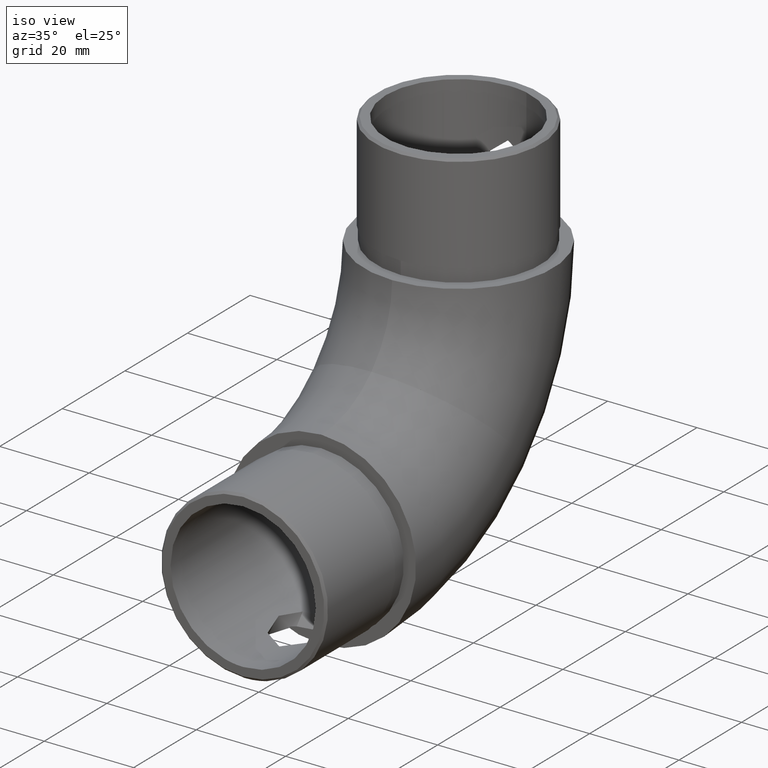
[diagram: clean part render]
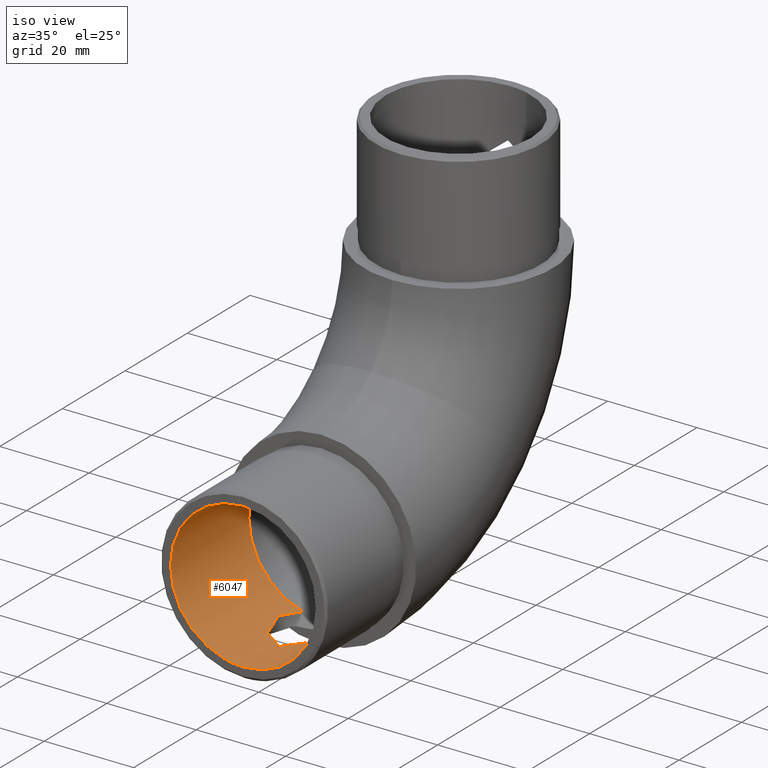
[diagram: same view with one face highlighted and labeled with its STEP entity id]
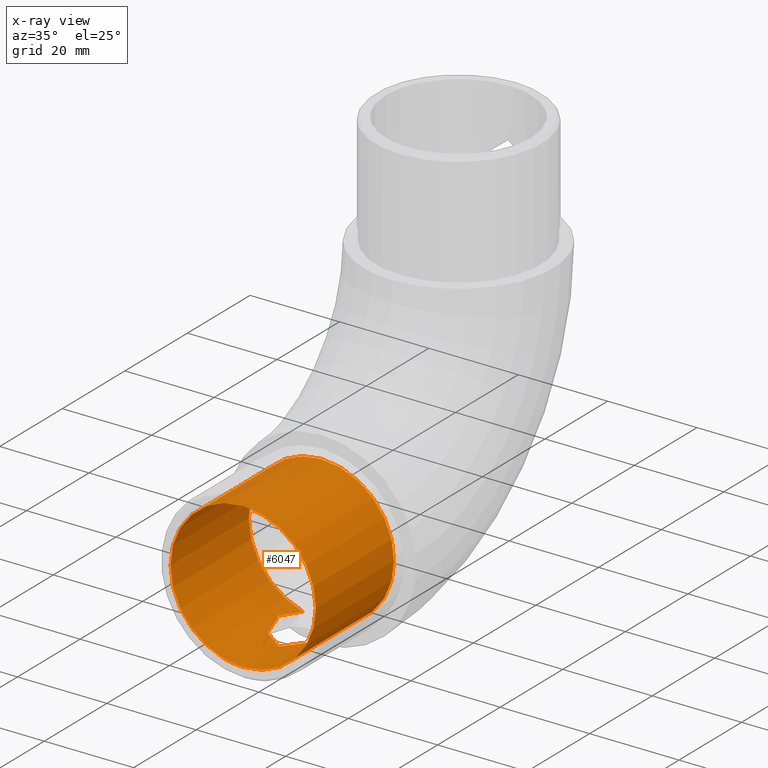
[diagram: x-ray of the same camera — body ghosted, the highlighted face saturated]
A machine part, iso view. The second image highlights one B-rep face of the part: STEP entity #6047.
The next image is the same camera in x-ray: the body ghosted, the highlighted face saturated — about 0% of this face is hidden behind the body in this view.
In plain terms, the highlighted cylindrical surface (bore or boss wall) has radius 16.25 mm, axis along (0, 1, 0).
Its self-contained STEP definition (entity closure, byte-faithful):
#190 = CARTESIAN_POINT ( 'NONE',  ( 3.448929757055123200, -12.18129015751596000, -15.88149117037157900 ) ) ;
#218 = DIRECTION ( 'NONE',  ( 0.0000000000000000000, 0.0000000000000000000, -1.000000000000000000 ) ) ;
#274 = EDGE_LOOP ( 'NONE', ( #1229 ) ) ;
#297 = CARTESIAN_POINT ( 'NONE',  ( 2.377435753720931200, -13.13052404046563600, -16.07819100454541300 ) ) ;
#359 = CARTESIAN_POINT ( 'NONE',  ( 5.214704771417741500, -1.453918003424510100, -15.39130149737128800 ) ) ;
#421 = CARTESIAN_POINT ( 'NONE',  ( -2.366528915036658200, -13.13820106847607100, -16.07984521875824100 ) ) ;
#423 = VERTEX_POINT ( 'NONE', #10423 ) ;
#1229 = ORIENTED_EDGE ( 'NONE', *, *, #6137, .T. ) ;
#1390 = ORIENTED_EDGE ( 'NONE', *, *, #5328, .F. ) ;
#1597 = CARTESIAN_POINT ( 'NONE',  ( 5.616004245823371700, -2.445469155722966200, -15.24902749760857600 ) ) ;
#1704 = CIRCLE ( 'NONE', #4555, 16.25000000000000000 ) ;
#1712 = CARTESIAN_POINT ( 'NONE',  ( -5.901850564895326600, -6.714128322935523300, -15.14050343125642700 ) ) ;
#1769 = CARTESIAN_POINT ( 'NONE',  ( -3.440020681453576300, -12.19113531170064700, -15.88343845367280400 ) ) ;
#1827 = CARTESIAN_POINT ( 'NONE',  ( -4.501465255794799200, -10.76512515277950000, -15.61763398572416200 ) ) ;
#2162 = B_SPLINE_CURVE_WITH_KNOTS ( 'NONE', 3,
 ( #4532, #8776, #7439, #8596, #5815, #10062, #14254, #1712, #3072, #16936, #14315, #1827, #10005, #1769, #11527, #11468, #421, #3183, #12807, #17169, #7315, #10180, #16993, #3249, #15721, #7376, #5935, #9945, #14197, #4473, #297, #7260, #17107, #190, #3008, #11589, #17049, #5875, #15608, #4652, #8715, #3128, #14379, #8656, #6044, #12748, #1597, #12863, #359, #10121, #15549, #4417, #14144 ),
 .UNSPECIFIED., .F., .F.,
 ( 4, 2, 2, 2, 2, 2, 2, 2, 2, 2, 2, 1, 2, 2, 2, 2, 2, 2, 2, 2, 2, 2, 2, 2, 2, 2, 4 ),
 ( 4.564145720659034900E-018, 0.002152881458970970300, 0.004305762917941936300, 0.006458644376912903200, 0.008611525835883870900, 0.01076440729485483700, 0.01291728875382580300, 0.01399372948331128500, 0.01507017021279676500, 0.01614661094228224400, 0.01668483130702498600, 0.01722305167176772400, 0.01776127203651046600, 0.01829949240125320800, 0.01883771276599594700, 0.01937593313073868900, 0.02045237386022417300, 0.02152881458970965300, 0.02368169604868062100, 0.02583457750765158500, 0.02691101823713707200, 0.02798745896662255300, 0.03014034042559351700, 0.03121678115507899700, 0.03229322188456448100, 0.03336966261404996500, 0.03444610334353544900 ),
 .UNSPECIFIED. ) ;
#3008 = CARTESIAN_POINT ( 'NONE',  ( 4.130368566778536800, -11.35889685862943700, -15.72323340020526500 ) ) ;
#3072 = CARTESIAN_POINT ( 'NONE',  ( -5.770927192521025300, -7.430969886999123200, -15.19211005504580700 ) ) ;
#3128 = CARTESIAN_POINT ( 'NONE',  ( 5.931667557647212900, -6.359437929989878700, -15.12874341256862800 ) ) ;
#3183 = CARTESIAN_POINT ( 'NONE',  ( -1.741088755240078400, -13.50250852065948200, -16.15953252143462400 ) ) ;
#3249 = CARTESIAN_POINT ( 'NONE',  ( 0.3653330770537224200, -13.88926549083745100, -16.24688917668635900 ) ) ;
#3908 = DIRECTION ( 'NONE',  ( -0.0000000000000000000, 1.000000000000000000, -0.0000000000000000000 ) ) ;
#4417 = CARTESIAN_POINT ( 'NONE',  ( 4.434435627201729300, -0.2592841030882712700, -15.63533923865645300 ) ) ;
#4473 = CARTESIAN_POINT ( 'NONE',  ( 1.911850074368902200, -13.40366372598989700, -16.13789983171802000 ) ) ;
#4532 = CARTESIAN_POINT ( 'NONE',  ( -4.187048588256864400, -6.938893903907228400E-015, -15.70130963071477300 ) ) ;
#4555 = AXIS2_PLACEMENT_3D ( 'NONE', #10697, #13426, #6551 ) ;
#4652 = CARTESIAN_POINT ( 'NONE',  ( 5.755520534025970700, -7.426074504634036600, -15.19674883643539200 ) ) ;
#5328 = EDGE_CURVE ( 'NONE', #17788, #10366, #2162, .T. ) ;
#5785 = CARTESIAN_POINT ( 'NONE',  ( 0.0000000000000000000, -24.99999999999999600, 0.0000000000000000000 ) ) ;
#5815 = CARTESIAN_POINT ( 'NONE',  ( -5.822768562522901100, -3.127965566790913000, -15.17130336419820200 ) ) ;
#5875 = CARTESIAN_POINT ( 'NONE',  ( 5.391218936003561200, -8.802448154099888500, -15.33095134721446100 ) ) ;
#5935 = CARTESIAN_POINT ( 'NONE',  ( 1.249871235287719300, -13.69486251176971000, -16.20279097754427500 ) ) ;
#6044 = CARTESIAN_POINT ( 'NONE',  ( 5.871633529041825600, -3.493969276475735100, -15.15219499539471200 ) ) ;
#6047 = ADVANCED_FACE ( 'NONE', ( #13745, #8714 ), #10687, .F. ) ;
#6137 = EDGE_CURVE ( 'NONE', #423, #423, #6983, .T. ) ;
#6551 = DIRECTION ( 'NONE',  ( 0.0000000000000000000, 0.0000000000000000000, 1.000000000000000000 ) ) ;
#6817 = CARTESIAN_POINT ( 'NONE',  ( 0.0000000000000000000, -3.000000000000000000, 0.0000000000000000000 ) ) ;
#6983 = CIRCLE ( 'NONE', #14683, 16.25000000000000000 ) ;
#7260 = CARTESIAN_POINT ( 'NONE',  ( 2.663778231678697300, -12.91755567695375400, -16.03249581831694900 ) ) ;
#7315 = CARTESIAN_POINT ( 'NONE',  ( -0.7119720233447838200, -13.83880942920801300, -16.23538784699166000 ) ) ;
#7376 = CARTESIAN_POINT ( 'NONE',  ( 0.9035687213338955400, -13.79662219941734600, -16.22578741179042800 ) ) ;
#7439 = CARTESIAN_POINT ( 'NONE',  ( -5.065051119975343900, -1.112690499507348600, -15.44348821516686200 ) ) ;
#8157 = CARTESIAN_POINT ( 'NONE',  ( 4.187048588256864400, -6.938893903907228400E-015, -15.70130963071477300 ) ) ;
#8500 = EDGE_CURVE ( 'NONE', #17788, #10366, #1704, .T. ) ;
#8596 = CARTESIAN_POINT ( 'NONE',  ( -5.642680738015588600, -2.434049871107422500, -15.24192327722421000 ) ) ;
#8656 = CARTESIAN_POINT ( 'NONE',  ( 6.013916428112991300, -4.566588044173613500, -15.09654540307163200 ) ) ;
#8714 = FACE_OUTER_BOUND ( 'NONE', #16721, .T. ) ;
#8715 = CARTESIAN_POINT ( 'NONE',  ( 5.883428082893937400, -6.719700098450669400, -15.14768846420832900 ) ) ;
#8776 = CARTESIAN_POINT ( 'NONE',  ( -4.682123676234230200, -0.5188836921087409700, -15.56928857661480600 ) ) ;
#9945 = CARTESIAN_POINT ( 'NONE',  ( 1.418945199771153700, -13.63260061009931200, -16.18878306751718200 ) ) ;
#10005 = CARTESIAN_POINT ( 'NONE',  ( -4.124546568208938200, -11.36769042504683800, -15.72482283551825200 ) ) ;
#10062 = CARTESIAN_POINT ( 'NONE',  ( -6.014352190748325300, -4.567514071994424700, -15.09637861299449600 ) ) ;
#10121 = CARTESIAN_POINT ( 'NONE',  ( 5.044141155082101600, -1.134655730043201600, -15.44865179011602100 ) ) ;
#10180 = CARTESIAN_POINT ( 'NONE',  ( -0.3531512056770113600, -13.89042295333057100, -16.24715381013545100 ) ) ;
#10366 = VERTEX_POINT ( 'NONE', #8157 ) ;
#10423 = CARTESIAN_POINT ( 'NONE',  ( 0.0000000000000000000, -24.99999999999999600, -16.25000000000000000 ) ) ;
#10687 = CYLINDRICAL_SURFACE ( 'NONE', #13758, 16.25000000000000000 ) ;
#10697 = CARTESIAN_POINT ( 'NONE',  ( 0.0000000000000000000, -6.938893903907228400E-015, -6.938893903907228400E-015 ) ) ;
#11215 = DIRECTION ( 'NONE',  ( 0.0000000000000000000, -1.000000000000000000, 0.0000000000000000000 ) ) ;
#11468 = CARTESIAN_POINT ( 'NONE',  ( -2.653817313358045800, -12.92536190324837300, -16.03415180193273300 ) ) ;
#11527 = CARTESIAN_POINT ( 'NONE',  ( -3.189985483764189700, -12.45287586937434000, -15.93614642733541200 ) ) ;
#11589 = CARTESIAN_POINT ( 'NONE',  ( 4.506447827024825200, -10.75657757830240700, -15.61618511901637700 ) ) ;
#12287 = CARTESIAN_POINT ( 'NONE',  ( -4.187048588256864400, -6.938893903907228400E-015, -15.70130963071477300 ) ) ;
#12748 = CARTESIAN_POINT ( 'NONE',  ( 5.801782800921079900, -3.136885916125119200, -15.17931683715920800 ) ) ;
#12807 = CARTESIAN_POINT ( 'NONE',  ( -1.410968120432078800, -13.64869066531894100, -16.19235081667131500 ) ) ;
#12863 = CARTESIAN_POINT ( 'NONE',  ( 5.499862372104931100, -2.108485434504064200, -15.29172395526203900 ) ) ;
#13426 = DIRECTION ( 'NONE',  ( 0.0000000000000000000, 1.000000000000000000, 0.0000000000000000000 ) ) ;
#13641 = DIRECTION ( 'NONE',  ( 0.0000000000000000000, 0.0000000000000000000, 1.000000000000000000 ) ) ;
#13745 = FACE_OUTER_BOUND ( 'NONE', #274, .T. ) ;
#13758 = AXIS2_PLACEMENT_3D ( 'NONE', #6817, #3908, #13641 ) ;
#14144 = CARTESIAN_POINT ( 'NONE',  ( 4.187048588256864400, -6.938893903907228400E-015, -15.70130963071477300 ) ) ;
#14197 = CARTESIAN_POINT ( 'NONE',  ( 1.749643344787952900, -13.48723407238918500, -16.15638730821726200 ) ) ;
#14254 = CARTESIAN_POINT ( 'NONE',  ( -6.022200002152017900, -5.284557646541223600, -15.09303784452696600 ) ) ;
#14315 = CARTESIAN_POINT ( 'NONE',  ( -5.138330753273189400, -9.477750880946949500, -15.41983261359023600 ) ) ;
#14379 = CARTESIAN_POINT ( 'NONE',  ( 6.022411700194487200, -5.283058770268291400, -15.09295485796246400 ) ) ;
#14683 = AXIS2_PLACEMENT_3D ( 'NONE', #5785, #11215, #218 ) ;
#15006 = ORIENTED_EDGE ( 'NONE', *, *, #8500, .T. ) ;
#15549 = CARTESIAN_POINT ( 'NONE',  ( 4.654328373620523400, -0.5385594740659375200, -15.57053080389871800 ) ) ;
#15608 = CARTESIAN_POINT ( 'NONE',  ( 5.675812322945080100, -7.773941384679000400, -15.22687943018364400 ) ) ;
#15721 = CARTESIAN_POINT ( 'NONE',  ( 0.7249981264533460500, -13.83629772625298700, -16.23481610284998000 ) ) ;
#16721 = EDGE_LOOP ( 'NONE', ( #15006, #1390 ) ) ;
#16936 = CARTESIAN_POINT ( 'NONE',  ( -5.389153981896363600, -8.809138080867427300, -15.33169357720840000 ) ) ;
#16993 = CARTESIAN_POINT ( 'NONE',  ( 0.005880903591413382500, -13.91585699830071100, -16.25297631686351400 ) ) ;
#17049 = CARTESIAN_POINT ( 'NONE',  ( 5.142193344633488600, -9.468397305116331700, -15.41853291644481200 ) ) ;
#17107 = CARTESIAN_POINT ( 'NONE',  ( 3.199404099010207900, -12.44356853643230400, -15.93425398451877100 ) ) ;
#17169 = CARTESIAN_POINT ( 'NONE',  ( -0.8912691661386876700, -13.79962205106811600, -16.22646844742405400 ) ) ;
#17788 = VERTEX_POINT ( 'NONE', #12287 ) ;